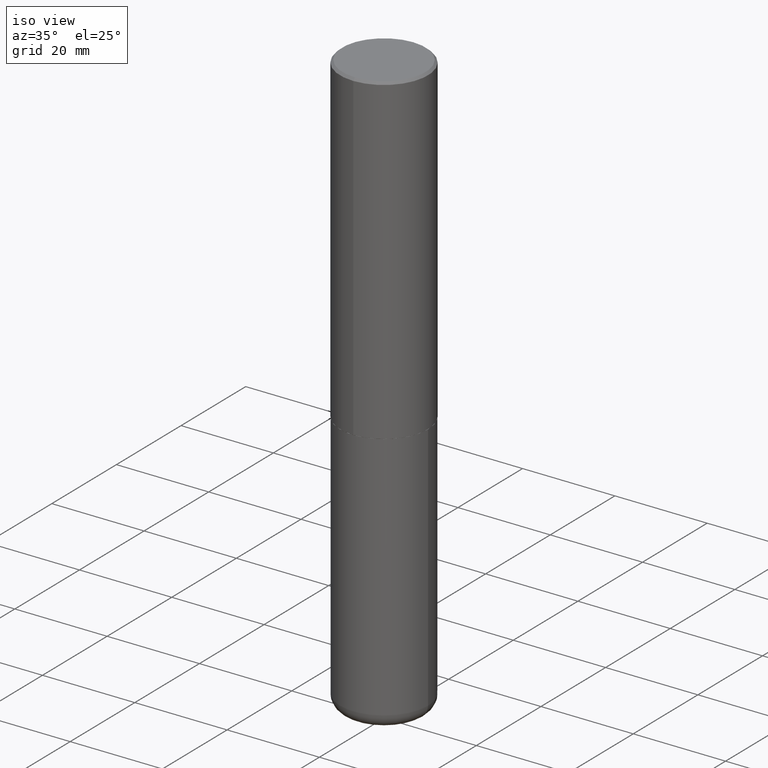
[diagram: clean part render]
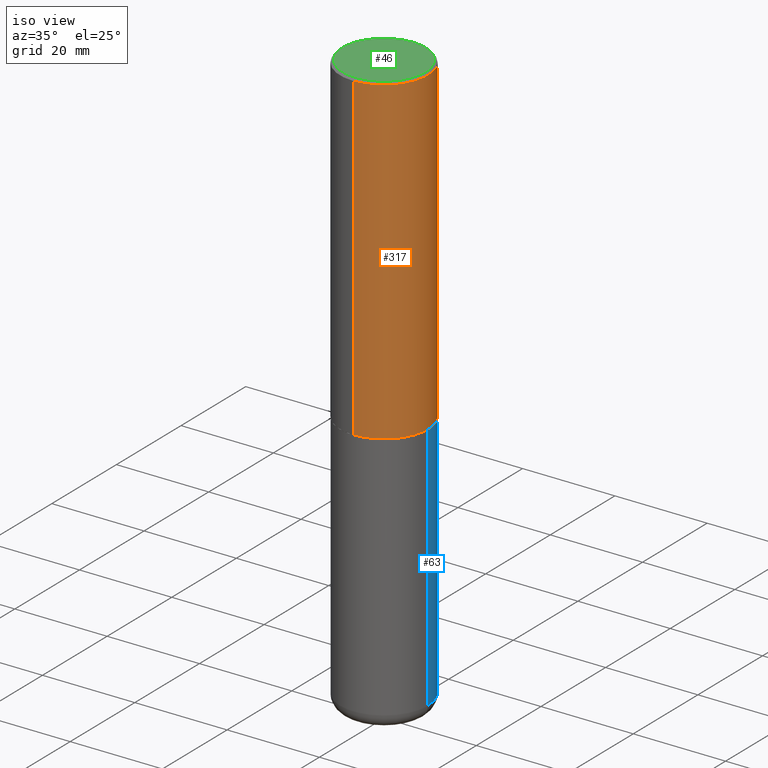
[diagram: same view with three faces highlighted in distinct colors, each labeled with its STEP entity id]
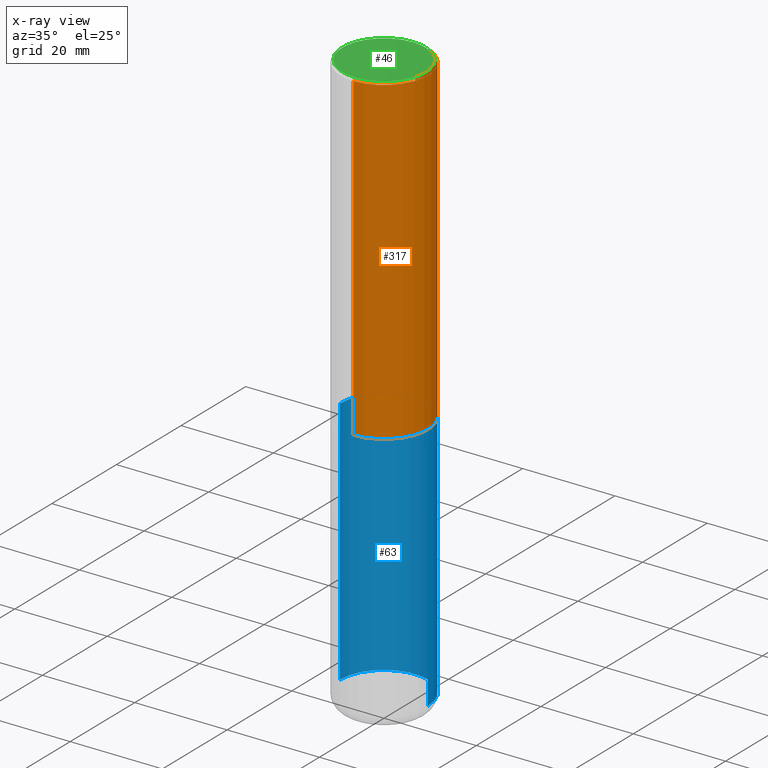
[diagram: x-ray of the same camera — body ghosted, the three highlighted faces saturated]
A machine part, iso view with three faces highlighted in distinct colors.
The next image is the same camera in x-ray (body ghosted, the three faces saturated) — at least one of them is partly hidden behind the body in this view.
Their STEP definitions:

[orange] entity #317 — the highlighted cylindrical surface (partial cylindrical patch) has radius 9.525 mm, axis along (-0, 0, 1).
#22 = DIRECTION ( 'NONE',  ( -6.982962677686265922E-15, -1.000000000000000000, 3.494488891895536035E-15 ) ) ;
#32 = EDGE_CURVE ( 'NONE', #418, #240, #155, .T. ) ;
#57 = AXIS2_PLACEMENT_3D ( 'NONE', #388, #237, #299 ) ;
#65 = VECTOR ( 'NONE', #296, 39.37007874015748143 ) ;
#74 = DIRECTION ( 'NONE',  ( -6.982962677686265922E-15, -1.000000000000000000, 2.913971193241877611E-15 ) ) ;
#75 = CARTESIAN_POINT ( 'NONE',  ( 6.724165036897648492E-29, -9.595832025636787455E-15, -2.749000000000000110 ) ) ;
#79 = LINE ( 'NONE', #241, #65 ) ;
#112 = CIRCLE ( 'NONE', #151, 0.3750000000000003886 ) ;
#151 = AXIS2_PLACEMENT_3D ( 'NONE', #75, #394, #74 ) ;
#155 = CIRCLE ( 'NONE', #330, 0.3750000000000000555 ) ;
#158 = DIRECTION ( 'NONE',  ( -2.446040391741596606E-29, 3.490662795793665557E-15, 1.000000000000000000 ) ) ;
#165 = CARTESIAN_POINT ( 'NONE',  ( -2.618611004132284935E-15, -0.3750000000000099920, -2.748999999999999222 ) ) ;
#169 = CARTESIAN_POINT ( 'NONE',  ( 2.664535259100411196E-15, 0.3749999999999907296, -2.749000000000000998 ) ) ;
#178 = VECTOR ( 'NONE', #269, 39.37007874015748143 ) ;
#180 = ORIENTED_EDGE ( 'NONE', *, *, #393, .T. ) ;
#208 = CARTESIAN_POINT ( 'NONE',  ( -2.572686749164323547E-15, -0.3750000000000001110, -0.01999999999999877570 ) ) ;
#211 = ORIENTED_EDGE ( 'NONE', *, *, #362, .T. ) ;
#221 = VERTEX_POINT ( 'NONE', #165 ) ;
#237 = DIRECTION ( 'NONE',  ( -2.446040391741596606E-29, 3.490662795793665557E-15, 1.000000000000000000 ) ) ;
#240 = VERTEX_POINT ( 'NONE', #356 ) ;
#241 = CARTESIAN_POINT ( 'NONE',  ( 2.664535259100376880E-15, 0.3750000000000002220, -1.308998548422625521E-15 ) ) ;
#269 = DIRECTION ( 'NONE',  ( -2.446040391741596606E-29, 3.490662795793665557E-15, 1.000000000000000000 ) ) ;
#296 = DIRECTION ( 'NONE',  ( -2.446040391741596606E-29, 3.490662795793665557E-15, 1.000000000000000000 ) ) ;
#299 = DIRECTION ( 'NONE',  ( -6.982962677686266711E-15, -1.000000000000000000, 3.490662795793665951E-15 ) ) ;
#303 = CARTESIAN_POINT ( 'NONE',  ( -2.618611004132351594E-15, -0.3750000000000002220, 1.308998548422625521E-15 ) ) ;
#317 = ADVANCED_FACE ( 'NONE', ( #323 ), #325, .T. ) ;
#323 = FACE_OUTER_BOUND ( 'NONE', #336, .T. ) ;
#325 = CYLINDRICAL_SURFACE ( 'NONE', #57, 0.3750000000000002220 ) ;
#330 = AXIS2_PLACEMENT_3D ( 'NONE', #413, #158, #22 ) ;
#334 = ORIENTED_EDGE ( 'NONE', *, *, #403, .F. ) ;
#336 = EDGE_LOOP ( 'NONE', ( #211, #180, #395, #334 ) ) ;
#356 = CARTESIAN_POINT ( 'NONE',  ( 2.618611004132350411E-15, 0.3749999999999999445, -0.02000000000000139513 ) ) ;
#360 = LINE ( 'NONE', #303, #178 ) ;
#362 = EDGE_CURVE ( 'NONE', #221, #392, #112, .T. ) ;
#388 = CARTESIAN_POINT ( 'NONE',  ( 0.000000000000000000, 0.000000000000000000, 0.000000000000000000 ) ) ;
#392 = VERTEX_POINT ( 'NONE', #169 ) ;
#393 = EDGE_CURVE ( 'NONE', #392, #240, #79, .T. ) ;
#394 = DIRECTION ( 'NONE',  ( -2.446040391741596606E-29, 3.490662795793665557E-15, 1.000000000000000000 ) ) ;
#395 = ORIENTED_EDGE ( 'NONE', *, *, #32, .F. ) ;
#403 = EDGE_CURVE ( 'NONE', #221, #418, #360, .T. ) ;
#413 = CARTESIAN_POINT ( 'NONE',  ( 4.892080783483214581E-31, -6.981325591587361238E-17, -0.02000000000000008715 ) ) ;
#418 = VERTEX_POINT ( 'NONE', #208 ) ;

[blue] entity #63 — the highlighted cylindrical surface (partial cylindrical patch) has radius 9.525 mm, axis along (-0, 0, 1).
#1 = CARTESIAN_POINT ( 'NONE',  ( -0.3750000000000000555, 2.664535259100376091E-15, -1.844600658845589598E-29 ) ) ;
#2 = EDGE_CURVE ( 'NONE', #78, #285, #305, .T. ) ;
#17 = CARTESIAN_POINT ( 'NONE',  ( 0.3749999999999999445, -1.965703993768690011E-14, -4.880000000000000782 ) ) ;
#18 = FACE_OUTER_BOUND ( 'NONE', #307, .T. ) ;
#21 = DIRECTION ( 'NONE',  ( 1.000000000000000000, -6.982962677686265922E-15, 4.876176775795935793E-29 ) ) ;
#28 = DIRECTION ( 'NONE',  ( -2.445468806185136597E-29, 3.491481338843145583E-15, 1.000000000000000000 ) ) ;
#31 = DIRECTION ( 'NONE',  ( -2.445468806185136597E-29, 3.491481338843145583E-15, 1.000000000000000000 ) ) ;
#40 = ORIENTED_EDGE ( 'NONE', *, *, #290, .F. ) ;
#63 = ADVANCED_FACE ( 'NONE', ( #18 ), #408, .T. ) ;
#66 = CARTESIAN_POINT ( 'NONE',  ( -0.3750000000000000555, -1.065546604858622507E-14, -2.750000000000000000 ) ) ;
#69 = DIRECTION ( 'NONE',  ( 1.000000000000000000, -6.982962677686266711E-15, 0.000000000000000000 ) ) ;
#71 = ORIENTED_EDGE ( 'NONE', *, *, #205, .T. ) ;
#72 = CARTESIAN_POINT ( 'NONE',  ( -0.3749999999999999445, -1.437389367445417440E-14, -4.880000000000000782 ) ) ;
#76 = AXIS2_PLACEMENT_3D ( 'NONE', #383, #28, #384 ) ;
#78 = VERTEX_POINT ( 'NONE', #17 ) ;
#115 = ORIENTED_EDGE ( 'NONE', *, *, #2, .F. ) ;
#117 = DIRECTION ( 'NONE',  ( -2.445468806185136877E-29, 3.491481338843145188E-15, 1.000000000000000000 ) ) ;
#121 = DIRECTION ( 'NONE',  ( -2.445468806185136597E-29, 3.491481338843145583E-15, 1.000000000000000000 ) ) ;
#136 = CIRCLE ( 'NONE', #246, 0.3750000000000000555 ) ;
#182 = CARTESIAN_POINT ( 'NONE',  ( 0.000000000000000000, 0.000000000000000000, 0.000000000000000000 ) ) ;
#205 = EDGE_CURVE ( 'NONE', #78, #213, #273, .T. ) ;
#213 = VERTEX_POINT ( 'NONE', #72 ) ;
#214 = VERTEX_POINT ( 'NONE', #66 ) ;
#227 = VECTOR ( 'NONE', #117, 39.37007874015748143 ) ;
#229 = ORIENTED_EDGE ( 'NONE', *, *, #275, .T. ) ;
#246 = AXIS2_PLACEMENT_3D ( 'NONE', #355, #31, #69 ) ;
#254 = AXIS2_PLACEMENT_3D ( 'NONE', #182, #121, #21 ) ;
#273 = CIRCLE ( 'NONE', #76, 0.3750000000000000555 ) ;
#275 = EDGE_CURVE ( 'NONE', #213, #214, #291, .T. ) ;
#285 = VERTEX_POINT ( 'NONE', #328 ) ;
#290 = EDGE_CURVE ( 'NONE', #285, #214, #136, .T. ) ;
#291 = LINE ( 'NONE', #1, #342 ) ;
#305 = LINE ( 'NONE', #400, #227 ) ;
#307 = EDGE_LOOP ( 'NONE', ( #71, #229, #40, #115 ) ) ;
#328 = CARTESIAN_POINT ( 'NONE',  ( 0.3750000000000000555, -1.222018468595100145E-14, -2.750000000000000000 ) ) ;
#342 = VECTOR ( 'NONE', #386, 39.37007874015748143 ) ;
#355 = CARTESIAN_POINT ( 'NONE',  ( 6.725039217009124520E-29, -9.601573681818649859E-15, -2.750000000000000000 ) ) ;
#383 = CARTESIAN_POINT ( 'NONE',  ( 1.193388777418346668E-28, -1.703842893355455010E-14, -4.880000000000000782 ) ) ;
#384 = DIRECTION ( 'NONE',  ( 1.000000000000000000, -6.982962677686261189E-15, 0.000000000000000000 ) ) ;
#386 = DIRECTION ( 'NONE',  ( -2.445468806185136877E-29, 3.491481338843145188E-15, 1.000000000000000000 ) ) ;
#400 = CARTESIAN_POINT ( 'NONE',  ( 0.3750000000000000555, -2.618611004132350016E-15, 1.828566290923476203E-29 ) ) ;
#408 = CYLINDRICAL_SURFACE ( 'NONE', #254, 0.3750000000000000555 ) ;

[green] entity #46 — the highlighted planar face has unit normal (0, -0, -1).
#26 = DIRECTION ( 'NONE',  ( -2.446040391741596606E-29, 3.490662795793665557E-15, 1.000000000000000000 ) ) ;
#46 = ADVANCED_FACE ( 'NONE', ( #125 ), #345, .F. ) ;
#95 = VERTEX_POINT ( 'NONE', #152 ) ;
#103 = CARTESIAN_POINT ( 'NONE',  ( -1.141397163745304909E-45, 1.628849886601155835E-31, 4.666305460853910467E-17 ) ) ;
#120 = EDGE_CURVE ( 'NONE', #95, #272, #341, .T. ) ;
#125 = FACE_OUTER_BOUND ( 'NONE', #364, .T. ) ;
#133 = CARTESIAN_POINT ( 'NONE',  ( 2.548781377355487113E-15, 0.3549999999999999822, -1.192522237898212341E-15 ) ) ;
#146 = AXIS2_PLACEMENT_3D ( 'NONE', #311, #282, #251 ) ;
#152 = CARTESIAN_POINT ( 'NONE',  ( -2.504081769186608216E-15, -0.3549999999999999822, 1.285848347115290366E-15 ) ) ;
#168 = DIRECTION ( 'NONE',  ( -6.982962677686265922E-15, -1.000000000000000000, 3.490662795793665557E-15 ) ) ;
#186 = CARTESIAN_POINT ( 'NONE',  ( -1.141397163745304909E-45, 1.628849886601155835E-31, 4.666305460853910467E-17 ) ) ;
#189 = DIRECTION ( 'NONE',  ( -6.982962677686265922E-15, -1.000000000000000000, 3.490662795793665557E-15 ) ) ;
#207 = ORIENTED_EDGE ( 'NONE', *, *, #120, .T. ) ;
#236 = ORIENTED_EDGE ( 'NONE', *, *, #286, .T. ) ;
#251 = DIRECTION ( 'NONE',  ( 6.982962677686265922E-15, 1.000000000000000000, -3.490662795793665557E-15 ) ) ;
#272 = VERTEX_POINT ( 'NONE', #133 ) ;
#274 = AXIS2_PLACEMENT_3D ( 'NONE', #186, #315, #189 ) ;
#282 = DIRECTION ( 'NONE',  ( 2.446040391741596045E-29, -3.490662795793665557E-15, -1.000000000000000000 ) ) ;
#286 = EDGE_CURVE ( 'NONE', #272, #95, #320, .T. ) ;
#311 = CARTESIAN_POINT ( 'NONE',  ( 2.478951750578624209E-15, 0.3549999999999999822, -1.215853765202481601E-15 ) ) ;
#315 = DIRECTION ( 'NONE',  ( -2.446040391741596606E-29, 3.490662795793665557E-15, 1.000000000000000000 ) ) ;
#320 = CIRCLE ( 'NONE', #371, 0.3549999999999999822 ) ;
#341 = CIRCLE ( 'NONE', #274, 0.3549999999999999822 ) ;
#345 = PLANE ( 'NONE',  #146 ) ;
#364 = EDGE_LOOP ( 'NONE', ( #236, #207 ) ) ;
#371 = AXIS2_PLACEMENT_3D ( 'NONE', #103, #26, #168 ) ;